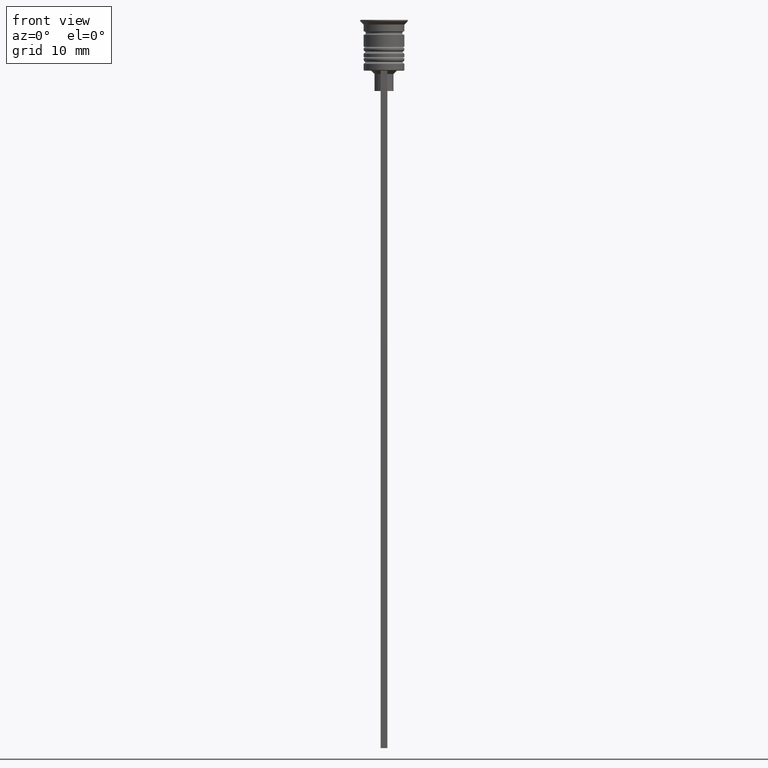
[diagram: clean part render]
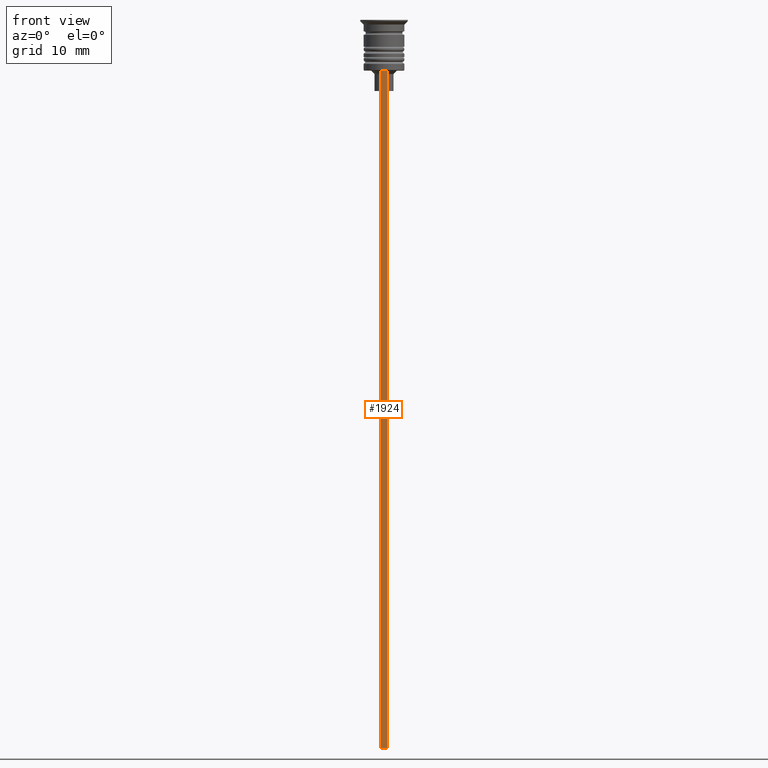
[diagram: same view with one face highlighted and labeled with its STEP entity id]
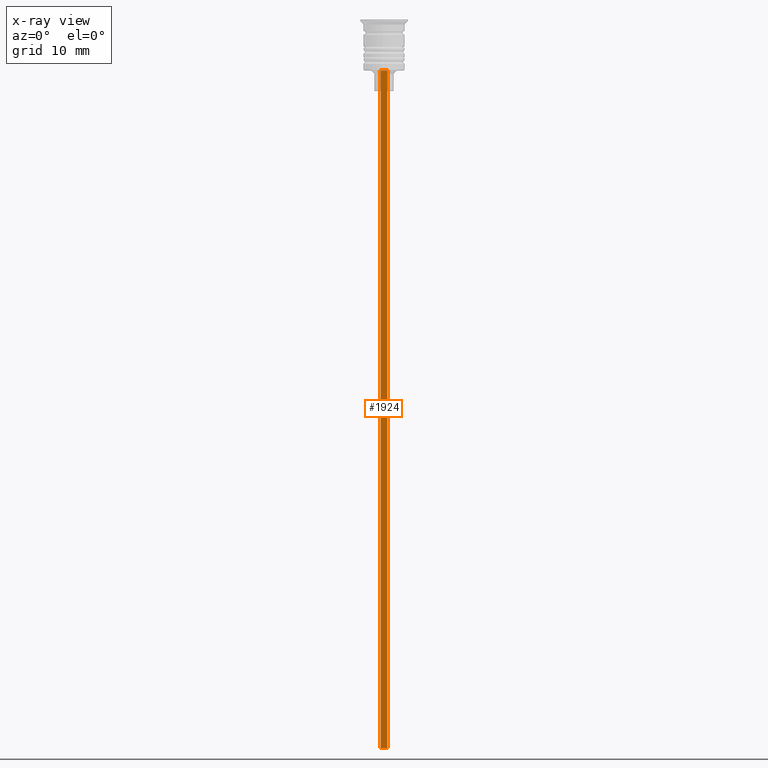
[diagram: x-ray of the same camera — body ghosted, the highlighted face saturated]
A machine part, front view. The second image highlights one B-rep face of the part: STEP entity #1924.
The next image is the same camera in x-ray: the body ghosted, the highlighted face saturated — about 0% of this face is hidden behind the body in this view.
In plain terms, the highlighted planar face has unit normal (0, -1, -0).
Its self-contained STEP definition (entity closure, byte-faithful):
#102 = VECTOR ( 'NONE', #602, 1000.000000000000000 ) ;
#121 = ORIENTED_EDGE ( 'NONE', *, *, #442, .F. ) ;
#154 = CARTESIAN_POINT ( 'NONE',  ( 0.4999999999999998890, -3.000000000000000000, -1.417237469701779329 ) ) ;
#159 = ORIENTED_EDGE ( 'NONE', *, *, #1153, .T. ) ;
#172 = LINE ( 'NONE', #154, #1147 ) ;
#194 = CARTESIAN_POINT ( 'NONE',  ( 0.4999999999999998890, -3.000000000000000000, -107.5000000000000000 ) ) ;
#350 = LINE ( 'NONE', #908, #555 ) ;
#439 = VECTOR ( 'NONE', #1356, 1000.000000000000000 ) ;
#442 = EDGE_CURVE ( 'NONE', #1290, #1085, #646, .T. ) ;
#443 = DIRECTION ( 'NONE',  ( 0.000000000000000000, -1.000000000000000000, -0.000000000000000000 ) ) ;
#449 = CARTESIAN_POINT ( 'NONE',  ( -0.5000000000000001110, -3.000000000000000000, -1.417237469701779329 ) ) ;
#511 = DIRECTION ( 'NONE',  ( 0.000000000000000000, 0.000000000000000000, -1.000000000000000000 ) ) ;
#553 = EDGE_CURVE ( 'NONE', #1085, #980, #172, .T. ) ;
#555 = VECTOR ( 'NONE', #1771, 1000.000000000000000 ) ;
#602 = DIRECTION ( 'NONE',  ( 0.000000000000000000, 0.000000000000000000, -1.000000000000000000 ) ) ;
#619 = CARTESIAN_POINT ( 'NONE',  ( 0.4999999999999998890, -3.000000000000000000, -1.417237469701779329 ) ) ;
#646 = LINE ( 'NONE', #654, #439 ) ;
#654 = CARTESIAN_POINT ( 'NONE',  ( 0.4999999999999998890, -3.000000000000000000, -7.500000000000000000 ) ) ;
#770 = CARTESIAN_POINT ( 'NONE',  ( 0.4999999999999998890, -3.000000000000000000, -7.500000000000000000 ) ) ;
#908 = CARTESIAN_POINT ( 'NONE',  ( 0.4999999999999998890, -3.000000000000000000, -107.5000000000000000 ) ) ;
#980 = VERTEX_POINT ( 'NONE', #194 ) ;
#1085 = VERTEX_POINT ( 'NONE', #770 ) ;
#1100 = ORIENTED_EDGE ( 'NONE', *, *, #553, .F. ) ;
#1147 = VECTOR ( 'NONE', #511, 1000.000000000000000 ) ;
#1153 = EDGE_CURVE ( 'NONE', #1290, #1954, #1692, .T. ) ;
#1223 = ORIENTED_EDGE ( 'NONE', *, *, #1745, .F. ) ;
#1290 = VERTEX_POINT ( 'NONE', #2111 ) ;
#1329 = DIRECTION ( 'NONE',  ( 0.000000000000000000, 0.000000000000000000, -1.000000000000000000 ) ) ;
#1356 = DIRECTION ( 'NONE',  ( 1.000000000000000000, 0.000000000000000000, 0.000000000000000000 ) ) ;
#1539 = EDGE_LOOP ( 'NONE', ( #121, #159, #1223, #1100 ) ) ;
#1647 = FACE_OUTER_BOUND ( 'NONE', #1539, .T. ) ;
#1692 = LINE ( 'NONE', #449, #102 ) ;
#1745 = EDGE_CURVE ( 'NONE', #980, #1954, #350, .T. ) ;
#1771 = DIRECTION ( 'NONE',  ( -1.000000000000000000, 0.000000000000000000, 0.000000000000000000 ) ) ;
#1924 = ADVANCED_FACE ( 'NONE', ( #1647 ), #2047, .T. ) ;
#1954 = VERTEX_POINT ( 'NONE', #2000 ) ;
#2000 = CARTESIAN_POINT ( 'NONE',  ( -0.5000000000000001110, -3.000000000000000000, -107.5000000000000000 ) ) ;
#2047 = PLANE ( 'NONE',  #2092 ) ;
#2092 = AXIS2_PLACEMENT_3D ( 'NONE', #619, #443, #1329 ) ;
#2111 = CARTESIAN_POINT ( 'NONE',  ( -0.5000000000000001110, -3.000000000000000000, -7.500000000000000000 ) ) ;